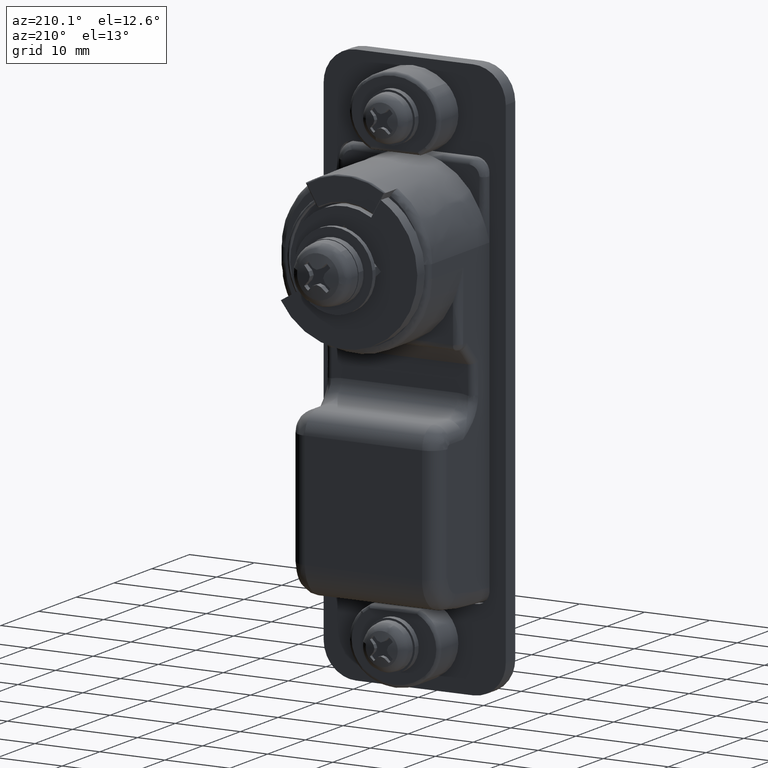
[diagram: clean part render]
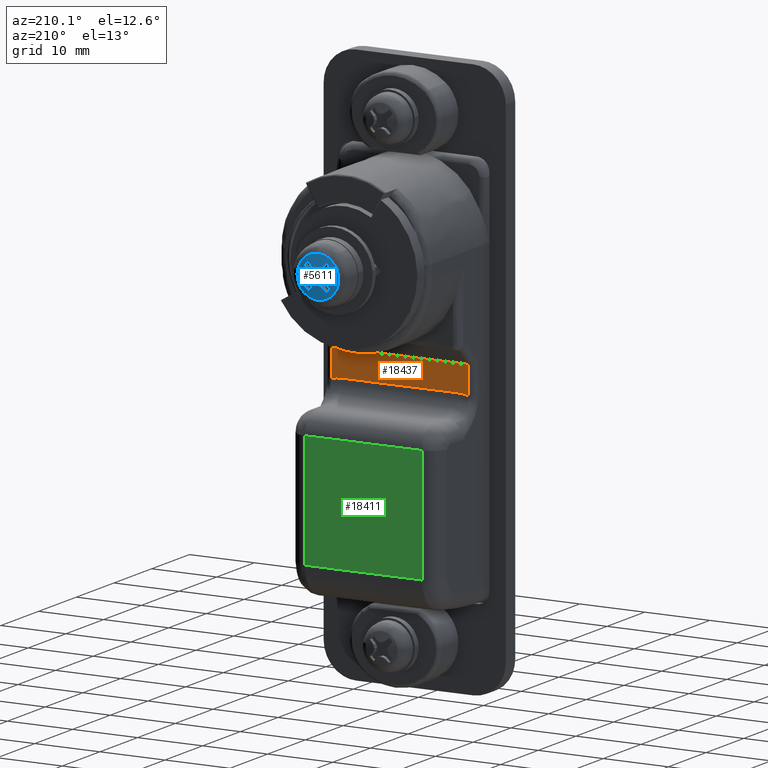
[diagram: same view with three faces highlighted in distinct colors, each labeled with its STEP entity id]
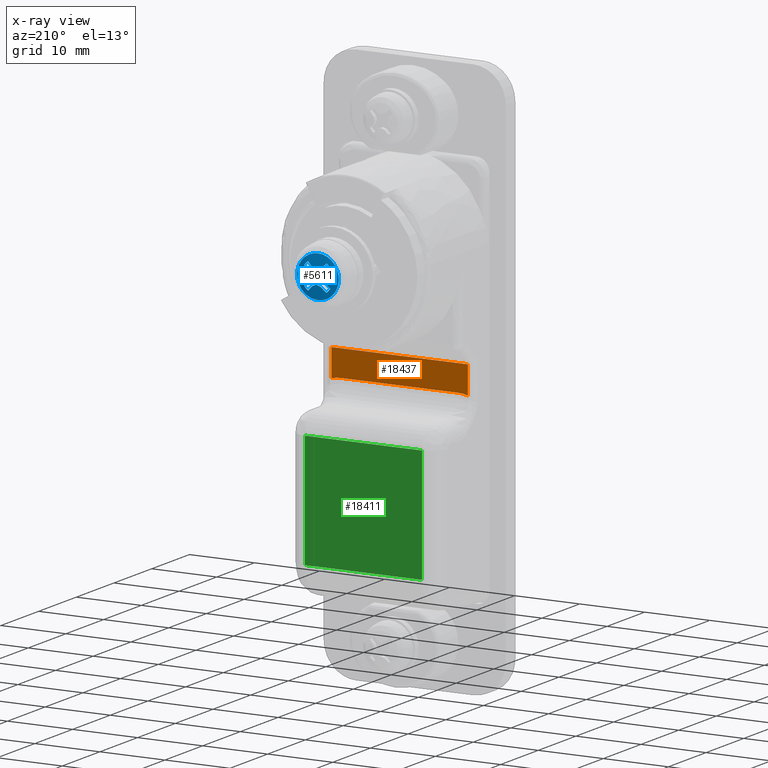
[diagram: x-ray of the same camera — body ghosted, the three highlighted faces saturated]
A machine part, auxiliary view with three faces highlighted in distinct colors.
The next image is the same camera in x-ray (body ghosted, the three faces saturated) — at least one of them is partly hidden behind the body in this view.
Their STEP definitions:

[orange] entity #18437 — the highlighted face is a freeform B-spline surface patch.
#14705=CARTESIAN_POINT('',(5.0,-10.500000000000000,-19.208497377870799));
#14706=VERTEX_POINT('',#14705);
#14772=CARTESIAN_POINT('',(5.0,-10.500000000000000,-14.950462000000099));
#14773=VERTEX_POINT('',#14772);
#14797=CARTESIAN_POINT('',(5.0,-10.500000000000000,-14.950462000000099));
#14798=CARTESIAN_POINT('',(5.0,-10.500000000000000,-19.208497377870799));
#14799=QUASI_UNIFORM_CURVE('',1,(#14797,#14798),.UNSPECIFIED.,.F.,.U.);
#14800=EDGE_CURVE('',#14773,#14706,#14799,.T.);
#15109=CARTESIAN_POINT('',(5.0,10.500000000000000,-19.208497377870799));
#15110=VERTEX_POINT('',#15109);
#15216=CARTESIAN_POINT('',(5.0,10.500000000000000,-14.950462000000099));
#15217=VERTEX_POINT('',#15216);
#15231=CARTESIAN_POINT('',(5.0,10.500000000000000,-19.208497377870799));
#15232=CARTESIAN_POINT('',(5.0,10.500000000000000,-14.950462000000099));
#15233=QUASI_UNIFORM_CURVE('',1,(#15231,#15232),.UNSPECIFIED.,.F.,.U.);
#15234=EDGE_CURVE('',#15110,#15217,#15233,.T.);
#16785=CARTESIAN_POINT('',(5.0,9.0,-19.0));
#16786=VERTEX_POINT('',#16785);
#16787=CARTESIAN_POINT('',(5.0,9.0,-19.0));
#16788=CARTESIAN_POINT('',(5.000000000000001,9.764490385526335,-19.000000000000004));
#16789=CARTESIAN_POINT('',(5.0,10.500000000000000,-19.208497377870820));
#16797=(BOUNDED_CURVE()B_SPLINE_CURVE(2,(#16787,#16788,#16789),.UNSPECIFIED.,.F.,.U.)CURVE()GEOMETRIC_REPRESENTATION_ITEM()QUASI_UNIFORM_CURVE()RATIONAL_B_SPLINE_CURVE((1.0,0.990477507528987,1.0))REPRESENTATION_ITEM(''));
#16798=EDGE_CURVE('',#16786,#15110,#16797,.T.);
#16830=CARTESIAN_POINT('',(5.0,-9.000000000000130,-19.0));
#16831=VERTEX_POINT('',#16830);
#16853=CARTESIAN_POINT('',(5.0,-9.000000000000130,-19.0));
#16854=CARTESIAN_POINT('',(5.0,9.0,-19.0));
#16855=QUASI_UNIFORM_CURVE('',1,(#16853,#16854),.UNSPECIFIED.,.F.,.U.);
#16856=EDGE_CURVE('',#16831,#16786,#16855,.T.);
#16878=CARTESIAN_POINT('',(5.0,-10.500000000000000,-19.208497377870788));
#16879=CARTESIAN_POINT('',(4.999999999999999,-9.764490385526390,-19.0));
#16880=CARTESIAN_POINT('',(5.0,-9.000000000000108,-19.0));
#16888=(BOUNDED_CURVE()B_SPLINE_CURVE(2,(#16878,#16879,#16880),.UNSPECIFIED.,.F.,.U.)CURVE()GEOMETRIC_REPRESENTATION_ITEM()QUASI_UNIFORM_CURVE()RATIONAL_B_SPLINE_CURVE((1.0,0.990477507528988,1.0))REPRESENTATION_ITEM(''));
#16889=EDGE_CURVE('',#14706,#16831,#16888,.T.);
#18364=CARTESIAN_POINT('',(5.0,-10.500000000000000,-14.950462000000099));
#18365=CARTESIAN_POINT('',(5.0,10.500000000000000,-14.950462000000099));
#18366=QUASI_UNIFORM_CURVE('',1,(#18364,#18365),.UNSPECIFIED.,.F.,.U.);
#18367=EDGE_CURVE('',#14773,#15217,#18366,.T.);
#18424=CARTESIAN_POINT('',(5.0,-11.548949959297930,-19.421186901043480));
#18425=CARTESIAN_POINT('',(5.0,-11.548949959297930,-14.737773314363089));
#18426=CARTESIAN_POINT('',(5.0,11.548950522561819,-19.421186901043480));
#18427=CARTESIAN_POINT('',(5.0,11.548950522561819,-14.737773314363089));
#18428=B_SPLINE_SURFACE_WITH_KNOTS('',1,1,((#18424,#18426),(#18425,#18427)),.UNSPECIFIED.,.F.,.F.,.U.,(2,2),(2,2),(0.0,4.683413586680386),(0.0,23.097900481859750),.UNSPECIFIED.);
#18429=ORIENTED_EDGE('',*,*,#16798,.T.);
#18430=ORIENTED_EDGE('',*,*,#15234,.T.);
#18431=ORIENTED_EDGE('',*,*,#18367,.F.);
#18432=ORIENTED_EDGE('',*,*,#14800,.T.);
#18433=ORIENTED_EDGE('',*,*,#16889,.T.);
#18434=ORIENTED_EDGE('',*,*,#16856,.T.);
#18435=EDGE_LOOP('',(#18429,#18430,#18431,#18432,#18433,#18434));
#18436=FACE_OUTER_BOUND('',#18435,.T.);
#18437=ADVANCED_FACE('',(#18436),#18428,.F.);

[blue] entity #5611 — the highlighted face is a freeform B-spline surface patch.
#4569=CARTESIAN_POINT('',(76.020908728053882,-3.156161858239752,0.561061463637338));
#4570=VERTEX_POINT('',#4569);
#4584=CARTESIAN_POINT('',(76.020908731615506,0.0,3.205643080415305));
#4585=VERTEX_POINT('',#4584);
#4586=CARTESIAN_POINT('',(76.020908728053882,-3.156161858239752,0.561061463637338));
#4587=CARTESIAN_POINT('',(76.020908731615506,-2.686042469590317,3.205643080415305));
#4588=CARTESIAN_POINT('',(76.020908731615506,0.0,3.205643080415305));
#4596=(BOUNDED_CURVE()B_SPLINE_CURVE(2,(#4586,#4587,#4588),.UNSPECIFIED.,.F.,.U.)B_SPLINE_CURVE_WITH_KNOTS((3,3),(0.780081747154463,1.0),.UNSPECIFIED.)CURVE()GEOMETRIC_REPRESENTATION_ITEM()RATIONAL_B_SPLINE_CURVE((0.937995440241623,0.742349740192960,1.0))REPRESENTATION_ITEM(''));
#4597=EDGE_CURVE('',#4570,#4585,#4596,.T.);
#4599=CARTESIAN_POINT('',(76.020908728053882,3.156161858239753,-0.561061463637339));
#4600=VERTEX_POINT('',#4599);
#4601=CARTESIAN_POINT('',(76.020908731615506,0.0,3.205643080415305));
#4602=CARTESIAN_POINT('',(76.020908731615506,3.205643080415304,3.205643080415304));
#4603=CARTESIAN_POINT('',(76.020908731615506,3.205643080415305,0.0));
#4604=CARTESIAN_POINT('',(76.020908731615506,3.205643080415305,-0.282712661518249));
#4605=CARTESIAN_POINT('',(76.020908728053882,3.156161858239753,-0.561061463637339));
#4613=(BOUNDED_CURVE()B_SPLINE_CURVE(2,(#4601,#4602,#4603,#4604,#4605),.UNSPECIFIED.,.F.,.U.)B_SPLINE_CURVE_WITH_KNOTS((3,2,3),(0.0,0.250000000000000,0.280081747154464),.UNSPECIFIED.)CURVE()GEOMETRIC_REPRESENTATION_ITEM()RATIONAL_B_SPLINE_CURVE((1.0,0.707106781186548,1.0,0.964757040993587,0.937995440241622))REPRESENTATION_ITEM(''));
#4614=EDGE_CURVE('',#4585,#4600,#4613,.T.);
#4661=CARTESIAN_POINT('',(76.020908731615506,0.0,-3.205643080415305));
#4662=VERTEX_POINT('',#4661);
#4663=CARTESIAN_POINT('',(76.020908728053882,3.156161858239753,-0.561061463637338));
#4664=CARTESIAN_POINT('',(76.020908731615506,2.686042469590317,-3.205643080415305));
#4665=CARTESIAN_POINT('',(76.020908731615506,0.0,-3.205643080415305));
#4673=(BOUNDED_CURVE()B_SPLINE_CURVE(2,(#4663,#4664,#4665),.UNSPECIFIED.,.F.,.U.)B_SPLINE_CURVE_WITH_KNOTS((3,3),(0.280081747154463,0.500000000000000),.UNSPECIFIED.)CURVE()GEOMETRIC_REPRESENTATION_ITEM()RATIONAL_B_SPLINE_CURVE((0.937995440241623,0.742349740192960,1.0))REPRESENTATION_ITEM(''));
#4674=EDGE_CURVE('',#4600,#4662,#4673,.T.);
#4676=CARTESIAN_POINT('',(76.020908731615506,0.0,-3.205643080415305));
#4677=CARTESIAN_POINT('',(76.020908731615506,-3.205643080415304,-3.205643080415304));
#4678=CARTESIAN_POINT('',(76.020908731615506,-3.205643080415305,0.0));
#4679=CARTESIAN_POINT('',(76.020908731615506,-3.205643080415304,0.282712661518250));
#4680=CARTESIAN_POINT('',(76.020908728053882,-3.156161858239753,0.561061463637338));
#4688=(BOUNDED_CURVE()B_SPLINE_CURVE(2,(#4676,#4677,#4678,#4679,#4680),.UNSPECIFIED.,.F.,.U.)B_SPLINE_CURVE_WITH_KNOTS((3,2,3),(0.500000000000000,0.750000000000000,0.780081747154464),.UNSPECIFIED.)CURVE()GEOMETRIC_REPRESENTATION_ITEM()RATIONAL_B_SPLINE_CURVE((1.0,0.707106781186548,1.0,0.964757040993587,0.937995440241622))REPRESENTATION_ITEM(''));
#4689=EDGE_CURVE('',#4662,#4570,#4688,.T.);
#4880=CARTESIAN_POINT('',(76.375240368170296,-1.249245864169524,0.628549374528767));
#4881=VERTEX_POINT('',#4880);
#4882=CARTESIAN_POINT('',(76.413535091420499,-1.020496000000094,-1.084202E-016));
#4883=VERTEX_POINT('',#4882);
#4884=CARTESIAN_POINT('',(76.375240368170267,-1.249245864169524,0.628549374528765));
#4885=CARTESIAN_POINT('',(76.403757473234606,-1.135054387572376,0.314778778632404));
#4886=CARTESIAN_POINT('',(76.413535091420457,-1.020496000000094,0.0));
#4894=(BOUNDED_CURVE()B_SPLINE_CURVE(2,(#4884,#4885,#4886),.UNSPECIFIED.,.F.,.U.)CURVE()GEOMETRIC_REPRESENTATION_ITEM()QUASI_UNIFORM_CURVE()RATIONAL_B_SPLINE_CURVE((1.0,0.999607777003854,1.0))REPRESENTATION_ITEM(''));
#4895=EDGE_CURVE('',#4881,#4883,#4894,.T.);
#4916=CARTESIAN_POINT('',(76.375251612498786,-1.249175000000094,-0.628477000000203));
#4917=VERTEX_POINT('',#4916);
#4918=CARTESIAN_POINT('',(76.413535091420457,-1.020496000000094,7.047314E-016));
#4919=CARTESIAN_POINT('',(76.403760506835766,-1.135018844718208,-0.314742385089710));
#4920=CARTESIAN_POINT('',(76.375251612498744,-1.249175000000092,-0.628477000000199));
#4928=(BOUNDED_CURVE()B_SPLINE_CURVE(2,(#4918,#4919,#4920),.UNSPECIFIED.,.F.,.U.)CURVE()GEOMETRIC_REPRESENTATION_ITEM()QUASI_UNIFORM_CURVE()RATIONAL_B_SPLINE_CURVE((1.0,0.999607885483474,1.0))REPRESENTATION_ITEM(''));
#4929=EDGE_CURVE('',#4883,#4917,#4928,.T.);
#4946=CARTESIAN_POINT('',(76.204239716922501,-2.003750183659485,-1.409781969484850));
#4947=VERTEX_POINT('',#4946);
#4948=CARTESIAN_POINT('',(76.375251612498758,-1.249175000000092,-0.628477000000201));
#4949=CARTESIAN_POINT('',(76.314672714501427,-1.629188953943904,-1.021952424476700));
#4950=CARTESIAN_POINT('',(76.204239716922473,-2.003750183659481,-1.409781969484848));
#4958=(BOUNDED_CURVE()B_SPLINE_CURVE(2,(#4948,#4949,#4950),.UNSPECIFIED.,.F.,.U.)CURVE()GEOMETRIC_REPRESENTATION_ITEM()QUASI_UNIFORM_CURVE()RATIONAL_B_SPLINE_CURVE((1.0,0.998948352803379,1.0))REPRESENTATION_ITEM(''));
#4959=EDGE_CURVE('',#4917,#4947,#4958,.T.);
#4985=CARTESIAN_POINT('',(76.204239716922501,-1.409781372829814,-2.003750603448965));
#4986=VERTEX_POINT('',#4985);
#4994=CARTESIAN_POINT('',(76.204239716922501,-1.409781372829812,-2.003750603448964));
#4995=CARTESIAN_POINT('',(76.204239716922501,-1.758442279881568,-1.758442803491497));
#4996=CARTESIAN_POINT('',(76.204239716922501,-2.003750183659484,-1.409781969484851));
#5004=(BOUNDED_CURVE()B_SPLINE_CURVE(2,(#4994,#4995,#4996),.UNSPECIFIED.,.F.,.U.)CURVE()GEOMETRIC_REPRESENTATION_ITEM()QUASI_UNIFORM_CURVE()RATIONAL_B_SPLINE_CURVE((1.0,0.985196600308279,1.0))REPRESENTATION_ITEM(''));
#5005=EDGE_CURVE('',#4986,#4947,#5004,.T.);
#5015=CARTESIAN_POINT('',(76.375247914420399,-0.628405999999984,-1.249246000000000));
#5016=VERTEX_POINT('',#5015);
#5017=CARTESIAN_POINT('',(76.204239716922459,-1.409781372829807,-2.003750603448959));
#5018=CARTESIAN_POINT('',(76.314670943447567,-1.021916819914483,-1.629224350299411));
#5019=CARTESIAN_POINT('',(76.375247914420427,-0.628405999999987,-1.249246000000003));
#5027=(BOUNDED_CURVE()B_SPLINE_CURVE(2,(#5017,#5018,#5019),.UNSPECIFIED.,.F.,.U.)CURVE()GEOMETRIC_REPRESENTATION_ITEM()QUASI_UNIFORM_CURVE()RATIONAL_B_SPLINE_CURVE((1.0,0.998948349354368,1.0))REPRESENTATION_ITEM(''));
#5028=EDGE_CURVE('',#4986,#5016,#5027,.T.);
#5045=CARTESIAN_POINT('',(76.413535006069893,5.421011E-017,-1.020497000000092));
#5046=VERTEX_POINT('',#5045);
#5047=CARTESIAN_POINT('',(76.375247914420441,-0.628405999999986,-1.249246000000001));
#5048=CARTESIAN_POINT('',(76.403757418296166,-0.314706875789945,-1.135054918177268));
#5049=CARTESIAN_POINT('',(76.413535006069893,-9.757820E-016,-1.020497000000092));
#5057=(BOUNDED_CURVE()B_SPLINE_CURVE(2,(#5047,#5048,#5049),.UNSPECIFIED.,.F.,.U.)CURVE()GEOMETRIC_REPRESENTATION_ITEM()QUASI_UNIFORM_CURVE()RATIONAL_B_SPLINE_CURVE((1.0,0.999607935491714,1.0))REPRESENTATION_ITEM(''));
#5058=EDGE_CURVE('',#5016,#5046,#5057,.T.);
#5075=CARTESIAN_POINT('',(76.375240479161590,0.628547000000026,-1.249246000000000));
#5076=VERTEX_POINT('',#5075);
#5077=CARTESIAN_POINT('',(76.413535006069893,3.252607E-016,-1.020497000000092));
#5078=CARTESIAN_POINT('',(76.403757415251150,0.314777586878595,-1.135054953853757));
#5079=CARTESIAN_POINT('',(76.375240479161562,0.628547000000021,-1.249245999999999));
#5087=(BOUNDED_CURVE()B_SPLINE_CURVE(2,(#5077,#5078,#5079),.UNSPECIFIED.,.F.,.U.)CURVE()GEOMETRIC_REPRESENTATION_ITEM()QUASI_UNIFORM_CURVE()RATIONAL_B_SPLINE_CURVE((1.0,0.999607779966421,1.0))REPRESENTATION_ITEM(''));
#5088=EDGE_CURVE('',#5046,#5076,#5087,.T.);
#5105=CARTESIAN_POINT('',(76.204239716922501,1.409780514379898,-2.003751207429395));
#5106=VERTEX_POINT('',#5105);
#5107=CARTESIAN_POINT('',(76.375240479161548,0.628547000000022,-1.249245999999995));
#5108=CARTESIAN_POINT('',(76.314662569515093,1.021986256312710,-1.629224536802409));
#5109=CARTESIAN_POINT('',(76.204239716922459,1.409780514379893,-2.003751207429389));
#5117=(BOUNDED_CURVE()B_SPLINE_CURVE(2,(#5107,#5108,#5109),.UNSPECIFIED.,.F.,.U.)CURVE()GEOMETRIC_REPRESENTATION_ITEM()QUASI_UNIFORM_CURVE()RATIONAL_B_SPLINE_CURVE((1.0,0.998948545159600,1.0))REPRESENTATION_ITEM(''));
#5118=EDGE_CURVE('',#5076,#5106,#5117,.T.);
#5144=CARTESIAN_POINT('',(76.204239716922501,2.003751211102685,-1.409780509158972));
#5145=VERTEX_POINT('',#5144);
#5153=CARTESIAN_POINT('',(76.204239716922501,2.003751211102683,-1.409780509158972));
#5154=CARTESIAN_POINT('',(76.204239716922501,1.758442721018325,-1.758442716436570));
#5155=CARTESIAN_POINT('',(76.204239716922501,1.409780514379897,-2.003751207429394));
#5163=(BOUNDED_CURVE()B_SPLINE_CURVE(2,(#5153,#5154,#5155),.UNSPECIFIED.,.F.,.U.)CURVE()GEOMETRIC_REPRESENTATION_ITEM()QUASI_UNIFORM_CURVE()RATIONAL_B_SPLINE_CURVE((1.0,0.985196501118191,1.0))REPRESENTATION_ITEM(''));
#5164=EDGE_CURVE('',#5145,#5106,#5163,.T.);
#5174=CARTESIAN_POINT('',(76.375236833165403,1.249316000000022,-0.628477000000202));
#5175=VERTEX_POINT('',#5174);
#5176=CARTESIAN_POINT('',(76.204239716922459,2.003751211102679,-1.409780509158967));
#5177=CARTESIAN_POINT('',(76.314660829568027,1.629259228055353,-1.021951446834241));
#5178=CARTESIAN_POINT('',(76.375236833165403,1.249316000000022,-0.628477000000202));
#5186=(BOUNDED_CURVE()B_SPLINE_CURVE(2,(#5176,#5177,#5178),.UNSPECIFIED.,.F.,.U.)CURVE()GEOMETRIC_REPRESENTATION_ITEM()QUASI_UNIFORM_CURVE()RATIONAL_B_SPLINE_CURVE((1.0,0.998948541499546,1.0))REPRESENTATION_ITEM(''));
#5187=EDGE_CURVE('',#5145,#5175,#5186,.T.);
#5204=CARTESIAN_POINT('',(76.413535006069893,1.020496999999920,5.421011E-017));
#5205=VERTEX_POINT('',#5204);
#5206=CARTESIAN_POINT('',(76.375236833165417,1.249316000000022,-0.628477000000202));
#5207=CARTESIAN_POINT('',(76.403754421694813,1.135090027492701,-0.314742578804955));
#5208=CARTESIAN_POINT('',(76.413535006069907,1.020496999999921,5.963112E-016));
#5216=(BOUNDED_CURVE()B_SPLINE_CURVE(2,(#5206,#5207,#5208),.UNSPECIFIED.,.F.,.U.)CURVE()GEOMETRIC_REPRESENTATION_ITEM()QUASI_UNIFORM_CURVE()RATIONAL_B_SPLINE_CURVE((1.0,0.999607828878007,1.0))REPRESENTATION_ITEM(''));
#5217=EDGE_CURVE('',#5175,#5205,#5216,.T.);
#5234=CARTESIAN_POINT('',(76.375236885897792,1.249316000000022,0.628475999999893));
#5235=VERTEX_POINT('',#5234);
#5236=CARTESIAN_POINT('',(76.413535006069907,1.020496999999921,-5.421011E-016));
#5237=CARTESIAN_POINT('',(76.403754421716400,1.135090027239609,0.314742077307592));
#5238=CARTESIAN_POINT('',(76.375236885897792,1.249316000000022,0.628475999999891));
#5246=(BOUNDED_CURVE()B_SPLINE_CURVE(2,(#5236,#5237,#5238),.UNSPECIFIED.,.F.,.U.)CURVE()GEOMETRIC_REPRESENTATION_ITEM()QUASI_UNIFORM_CURVE()RATIONAL_B_SPLINE_CURVE((1.0,0.999607829981024,1.0))REPRESENTATION_ITEM(''));
#5247=EDGE_CURVE('',#5205,#5235,#5246,.T.);
#5264=CARTESIAN_POINT('',(76.204239716922501,2.003751618113800,1.409779930665184));
#5265=VERTEX_POINT('',#5264);
#5266=CARTESIAN_POINT('',(76.375236885897792,1.249316000000021,0.628475999999892));
#5267=CARTESIAN_POINT('',(76.314660882769701,1.629259433865811,1.021950659974180));
#5268=CARTESIAN_POINT('',(76.204239716922459,2.003751618113794,1.409779930665180));
#5276=(BOUNDED_CURVE()B_SPLINE_CURVE(2,(#5266,#5267,#5268),.UNSPECIFIED.,.F.,.U.)CURVE()GEOMETRIC_REPRESENTATION_ITEM()QUASI_UNIFORM_CURVE()RATIONAL_B_SPLINE_CURVE((1.0,0.998948540371507,1.0))REPRESENTATION_ITEM(''));
#5277=EDGE_CURVE('',#5235,#5265,#5276,.T.);
#5303=CARTESIAN_POINT('',(76.204239716922501,1.409780514379964,2.003751207429345));
#5304=VERTEX_POINT('',#5303);
#5312=CARTESIAN_POINT('',(76.204239716922501,1.409780514379965,2.003751207429346));
#5313=CARTESIAN_POINT('',(76.204239716922501,1.758443019022936,1.758442506769259));
#5314=CARTESIAN_POINT('',(76.204239716922501,2.003751618113799,1.409779930665184));
#5322=(BOUNDED_CURVE()B_SPLINE_CURVE(2,(#5312,#5313,#5314),.UNSPECIFIED.,.F.,.U.)CURVE()GEOMETRIC_REPRESENTATION_ITEM()QUASI_UNIFORM_CURVE()RATIONAL_B_SPLINE_CURVE((1.0,0.985196476371968,1.0))REPRESENTATION_ITEM(''));
#5323=EDGE_CURVE('',#5304,#5265,#5322,.T.);
#5333=CARTESIAN_POINT('',(76.375240479161590,0.628547000000026,1.249246000000000));
#5334=VERTEX_POINT('',#5333);
#5335=CARTESIAN_POINT('',(76.204239716922473,1.409780514379959,2.003751207429340));
#5336=CARTESIAN_POINT('',(76.314662569515093,1.021986256312742,1.629224536802383));
#5337=CARTESIAN_POINT('',(76.375240479161548,0.628547000000022,1.249245999999995));
#5345=(BOUNDED_CURVE()B_SPLINE_CURVE(2,(#5335,#5336,#5337),.UNSPECIFIED.,.F.,.U.)CURVE()GEOMETRIC_REPRESENTATION_ITEM()QUASI_UNIFORM_CURVE()RATIONAL_B_SPLINE_CURVE((1.0,0.998948545159599,1.0))REPRESENTATION_ITEM(''));
#5346=EDGE_CURVE('',#5304,#5334,#5345,.T.);
#5363=CARTESIAN_POINT('',(76.413535091420499,5.421011E-017,1.020496000000000));
#5364=VERTEX_POINT('',#5363);
#5365=CARTESIAN_POINT('',(76.375240479161533,0.628547000000022,1.249245999999998));
#5366=CARTESIAN_POINT('',(76.403757467474165,0.314777588000307,1.135054455063933));
#5367=CARTESIAN_POINT('',(76.413535091420457,-4.065758E-015,1.020496000000007));
#5375=(BOUNDED_CURVE()B_SPLINE_CURVE(2,(#5365,#5366,#5367),.UNSPECIFIED.,.F.,.U.)CURVE()GEOMETRIC_REPRESENTATION_ITEM()QUASI_UNIFORM_CURVE()RATIONAL_B_SPLINE_CURVE((1.0,0.999607779568383,1.0))REPRESENTATION_ITEM(''));
#5376=EDGE_CURVE('',#5334,#5364,#5375,.T.);
#5393=CARTESIAN_POINT('',(76.375236885897792,-0.628475999999978,1.249316000000000));
#5394=VERTEX_POINT('',#5393);
#5395=CARTESIAN_POINT('',(76.413535091420471,4.499439E-015,1.020496000000007));
#5396=CARTESIAN_POINT('',(76.403754473942342,-0.314742078429222,1.135089528450056));
#5397=CARTESIAN_POINT('',(76.375236885897792,-0.628475999999979,1.249315999999994));
#5405=(BOUNDED_CURVE()B_SPLINE_CURVE(2,(#5395,#5396,#5397),.UNSPECIFIED.,.F.,.U.)CURVE()GEOMETRIC_REPRESENTATION_ITEM()QUASI_UNIFORM_CURVE()RATIONAL_B_SPLINE_CURVE((1.0,0.999607829582864,1.0))REPRESENTATION_ITEM(''));
#5406=EDGE_CURVE('',#5364,#5394,#5405,.T.);
#5423=CARTESIAN_POINT('',(76.204239716922501,-1.409781971985586,2.003750181900035));
#5424=VERTEX_POINT('',#5423);
#5425=CARTESIAN_POINT('',(76.375236885897792,-0.628475999999980,1.249315999999996));
#5426=CARTESIAN_POINT('',(76.314660904377718,-1.021951688009312,1.629258710570172));
#5427=CARTESIAN_POINT('',(76.204239716922459,-1.409781971985579,2.003750181900031));
#5435=(BOUNDED_CURVE()B_SPLINE_CURVE(2,(#5425,#5426,#5427),.UNSPECIFIED.,.F.,.U.)CURVE()GEOMETRIC_REPRESENTATION_ITEM()QUASI_UNIFORM_CURVE()RATIONAL_B_SPLINE_CURVE((1.0,0.998948539461323,1.0))REPRESENTATION_ITEM(''));
#5436=EDGE_CURVE('',#5394,#5424,#5435,.T.);
#5462=CARTESIAN_POINT('',(76.204239716922501,-2.003750183647515,1.409781969501860));
#5463=VERTEX_POINT('',#5462);
#5471=CARTESIAN_POINT('',(76.204239716922501,-2.003750183647516,1.409781969501860));
#5472=CARTESIAN_POINT('',(76.204239716922501,-1.758442497029022,1.758442494849363));
#5473=CARTESIAN_POINT('',(76.204239716922501,-1.409781971985588,2.003750181900036));
#5481=(BOUNDED_CURVE()B_SPLINE_CURVE(2,(#5471,#5472,#5473),.UNSPECIFIED.,.F.,.U.)CURVE()GEOMETRIC_REPRESENTATION_ITEM()QUASI_UNIFORM_CURVE()RATIONAL_B_SPLINE_CURVE((1.0,0.985196625938997,1.0))REPRESENTATION_ITEM(''));
#5482=EDGE_CURVE('',#5463,#5424,#5481,.T.);
#5492=CARTESIAN_POINT('',(76.204239716922459,-2.003750183647511,1.409781969501854));
#5493=CARTESIAN_POINT('',(76.314662455475570,-1.629223952031637,1.021988165997595));
#5494=CARTESIAN_POINT('',(76.375240368170253,-1.249245864169521,0.628549374528763));
#5502=(BOUNDED_CURVE()B_SPLINE_CURVE(2,(#5492,#5493,#5494),.UNSPECIFIED.,.F.,.U.)CURVE()GEOMETRIC_REPRESENTATION_ITEM()QUASI_UNIFORM_CURVE()RATIONAL_B_SPLINE_CURVE((1.0,0.998948547620691,1.0))REPRESENTATION_ITEM(''));
#5503=EDGE_CURVE('',#5463,#4881,#5502,.T.);
#5559=CARTESIAN_POINT('',(75.428377326880835,-3.437222152304459,-3.437224910215325));
#5560=CARTESIAN_POINT('',(75.931428251656726,-1.756247008394795,-3.512496827773928));
#5561=CARTESIAN_POINT('',(75.931428253884533,1.756247086010852,-3.512496827773928));
#5562=CARTESIAN_POINT('',(75.428377279570256,3.437222311048052,-3.437224902483796));
#5563=CARTESIAN_POINT('',(75.931429076855650,-3.512494133031495,-1.756248478314691));
#5564=CARTESIAN_POINT('',(76.457005998026176,-1.795568289122325,-1.795569728764757));
#5565=CARTESIAN_POINT('',(76.457006000303863,1.795568368135347,-1.795569728764757));
#5566=CARTESIAN_POINT('',(75.931429027352692,3.512494294745056,-1.756248474277760));
#5567=CARTESIAN_POINT('',(75.931429078489018,-3.512494133031495,1.756248375471730));
#5568=CARTESIAN_POINT('',(76.457005999696122,-1.795568289122325,1.795569623369334));
#5569=CARTESIAN_POINT('',(76.457006001973795,1.795568368135347,1.795569623369334));
#5570=CARTESIAN_POINT('',(75.931429028986074,3.512494294745056,1.756248371434799));
#5571=CARTESIAN_POINT('',(75.428377381748319,-3.437222160035987,3.437224727350819));
#5572=CARTESIAN_POINT('',(75.931428308882090,-1.756247012431727,3.512496640833482));
#5573=CARTESIAN_POINT('',(75.931428311109883,1.756247090047783,3.512496640833482));
#5574=CARTESIAN_POINT('',(75.428377334437741,3.437222318779581,3.437224719619290));
#5582=(BOUNDED_SURFACE()B_SPLINE_SURFACE(2,2,((#5559,#5563,#5567,#5571),(#5560,#5564,#5568,#5572),(#5561,#5565,#5569,#5573),(#5562,#5566,#5570,#5574)),.UNSPECIFIED.,.F.,.F.,.U.)B_SPLINE_SURFACE_WITH_KNOTS((3,1,3),(3,1,3),(0.0,3.551379999957950,7.102760186299428),(0.0,3.551382851383598,7.102765516383669),.UNSPECIFIED.)GEOMETRIC_REPRESENTATION_ITEM()RATIONAL_B_SPLINE_SURFACE(((1.044778722808240,1.022389343427566,1.022389343427566,1.044778720458163),(1.022389379380674,1.0,1.0,1.022389377030597),(1.022389379380674,1.0,1.0,1.022389377030597),(1.044778725158315,1.022389345777641,1.022389345777641,1.044778722808238)))REPRESENTATION_ITEM('')SURFACE());
#5583=ORIENTED_EDGE('',*,*,#4597,.F.);
#5584=ORIENTED_EDGE('',*,*,#4689,.F.);
#5585=ORIENTED_EDGE('',*,*,#4674,.F.);
#5586=ORIENTED_EDGE('',*,*,#4614,.F.);
#5587=EDGE_LOOP('',(#5583,#5584,#5585,#5586));
#5588=FACE_OUTER_BOUND('',#5587,.T.);
#5589=ORIENTED_EDGE('',*,*,#5503,.F.);
#5590=ORIENTED_EDGE('',*,*,#5482,.T.);
#5591=ORIENTED_EDGE('',*,*,#5436,.F.);
#5592=ORIENTED_EDGE('',*,*,#5406,.F.);
#5593=ORIENTED_EDGE('',*,*,#5376,.F.);
#5594=ORIENTED_EDGE('',*,*,#5346,.F.);
#5595=ORIENTED_EDGE('',*,*,#5323,.T.);
#5596=ORIENTED_EDGE('',*,*,#5277,.F.);
#5597=ORIENTED_EDGE('',*,*,#5247,.F.);
#5598=ORIENTED_EDGE('',*,*,#5217,.F.);
#5599=ORIENTED_EDGE('',*,*,#5187,.F.);
#5600=ORIENTED_EDGE('',*,*,#5164,.T.);
#5601=ORIENTED_EDGE('',*,*,#5118,.F.);
#5602=ORIENTED_EDGE('',*,*,#5088,.F.);
#5603=ORIENTED_EDGE('',*,*,#5058,.F.);
#5604=ORIENTED_EDGE('',*,*,#5028,.F.);
#5605=ORIENTED_EDGE('',*,*,#5005,.T.);
#5606=ORIENTED_EDGE('',*,*,#4959,.F.);
#5607=ORIENTED_EDGE('',*,*,#4929,.F.);
#5608=ORIENTED_EDGE('',*,*,#4895,.F.);
#5609=EDGE_LOOP('',(#5589,#5590,#5591,#5592,#5593,#5594,#5595,#5596,#5597,#5598,#5599,#5600,#5601,#5602,#5603,#5604,#5605,#5606,#5607,#5608));
#5610=FACE_BOUND('',#5609,.T.);
#5611=ADVANCED_FACE('',(#5588,#5610),#5582,.T.);

[green] entity #18411 — the highlighted face is a freeform B-spline surface patch.
#16306=CARTESIAN_POINT('',(14.600000000000000,-9.000000000000119,-25.0));
#16307=VERTEX_POINT('',#16306);
#16383=CARTESIAN_POINT('',(14.600000000000000,-9.000000000000119,-42.641411796515349));
#16384=VERTEX_POINT('',#16383);
#16398=CARTESIAN_POINT('',(14.600000000000000,-9.000000000000119,-25.0));
#16399=CARTESIAN_POINT('',(14.600000000000000,-9.000000000000119,-42.641411796515349));
#16400=QUASI_UNIFORM_CURVE('',1,(#16398,#16399),.UNSPECIFIED.,.F.,.U.);
#16401=EDGE_CURVE('',#16307,#16384,#16400,.T.);
#16552=CARTESIAN_POINT('',(14.600000000000000,9.0,-25.0));
#16553=VERTEX_POINT('',#16552);
#16612=CARTESIAN_POINT('',(14.600000000000000,9.0,-42.641411796515349));
#16613=VERTEX_POINT('',#16612);
#16635=CARTESIAN_POINT('',(14.600000000000000,9.0,-42.641411796515349));
#16636=CARTESIAN_POINT('',(14.600000000000000,9.0,-25.0));
#16637=QUASI_UNIFORM_CURVE('',1,(#16635,#16636),.UNSPECIFIED.,.F.,.U.);
#16638=EDGE_CURVE('',#16613,#16553,#16637,.T.);
#16737=CARTESIAN_POINT('',(14.600000000000000,9.0,-25.0));
#16738=CARTESIAN_POINT('',(14.600000000000000,-9.000000000000119,-25.0));
#16739=QUASI_UNIFORM_CURVE('',1,(#16737,#16738),.UNSPECIFIED.,.F.,.U.);
#16740=EDGE_CURVE('',#16553,#16307,#16739,.T.);
#17157=CARTESIAN_POINT('',(14.600000000000000,-9.000000000000119,-42.641411796515349));
#17158=CARTESIAN_POINT('',(14.600000000000000,9.0,-42.641411796515349));
#17159=QUASI_UNIFORM_CURVE('',1,(#17157,#17158),.UNSPECIFIED.,.F.,.U.);
#17160=EDGE_CURVE('',#16384,#16613,#17159,.T.);
#18400=CARTESIAN_POINT('',(14.600000000000000,-9.899099965112633,-43.522599287929097));
#18401=CARTESIAN_POINT('',(14.600000000000000,-9.899099965112633,-24.118811089047639));
#18402=CARTESIAN_POINT('',(14.600000000000000,9.899100447910135,-43.522599287929097));
#18403=CARTESIAN_POINT('',(14.600000000000000,9.899100447910135,-24.118811089047639));
#18404=B_SPLINE_SURFACE_WITH_KNOTS('',1,1,((#18400,#18402),(#18401,#18403)),.UNSPECIFIED.,.F.,.F.,.U.,(2,2),(2,2),(0.0,19.403788198881472),(0.0,19.798200413022769),.UNSPECIFIED.);
#18405=ORIENTED_EDGE('',*,*,#17160,.T.);
#18406=ORIENTED_EDGE('',*,*,#16638,.T.);
#18407=ORIENTED_EDGE('',*,*,#16740,.T.);
#18408=ORIENTED_EDGE('',*,*,#16401,.T.);
#18409=EDGE_LOOP('',(#18405,#18406,#18407,#18408));
#18410=FACE_OUTER_BOUND('',#18409,.T.);
#18411=ADVANCED_FACE('',(#18410),#18404,.F.);